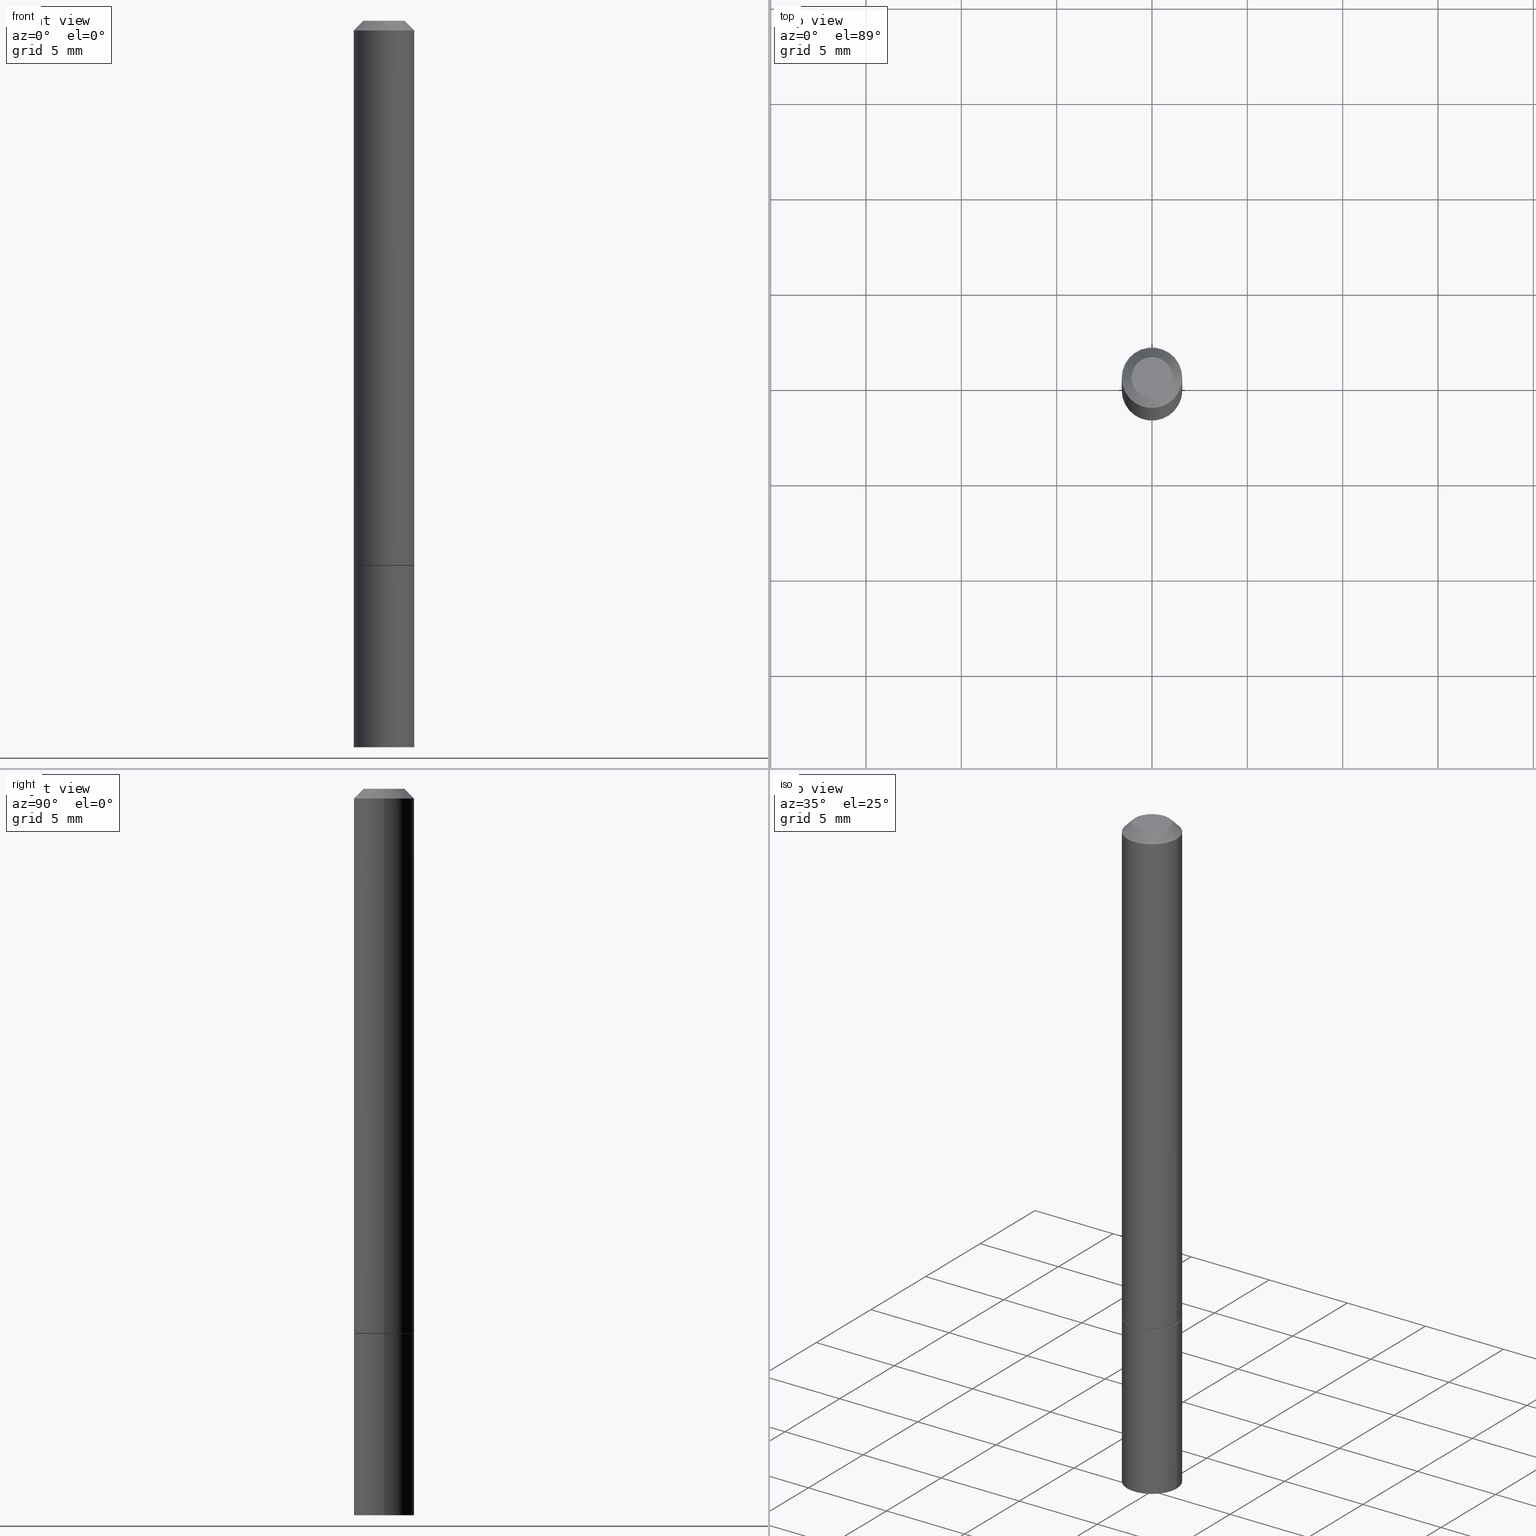
[diagram: canonical four-view strip — front | top / right | iso, engineering-drawing reading convention]
A machine part, canonical four-view strip (front | top / right | iso — engineering-drawing reading convention). The complete STEP part file that produces these views, byte-faithful:
ISO-10303-21;
HEADER;
FILE_DESCRIPTION (( 'STEP AP203' ),
    '1' );
FILE_NAME ('30469.STEP',
    '2024-02-27T12:43:29',
    ( '' ),
    ( '' ),
    'SwSTEP 2.0',
    'SolidWorks 2023',
    '' );
FILE_SCHEMA (( 'CONFIG_CONTROL_DESIGN' ));
ENDSEC;

DATA;
#1 = AXIS2_PLACEMENT_3D ( 'NONE', #119, #292, #152 ) ;
#2 = ADVANCED_FACE ( 'NONE', ( #312 ), #80, .T. ) ;
#3 = ORIENTED_EDGE ( 'NONE', *, *, #122, .T. ) ;
#4 = PERSON_AND_ORGANIZATION ( #288, #198 ) ;
#5 = EDGE_LOOP ( 'NONE', ( #194, #30 ) ) ;
#6 = DIRECTION ( 'NONE',  ( 2.438088387897960049E-29, -3.491481338843145188E-15, -1.000000000000000000 ) ) ;
#7 = EDGE_CURVE ( 'NONE', #219, #131, #111, .T. ) ;
#8 = AXIS2_PLACEMENT_3D ( 'NONE', #190, #306, #49 ) ;
#9 = DIRECTION ( 'NONE',  ( -2.445468806185136597E-29, 3.491481338843145583E-15, 1.000000000000000000 ) ) ;
#10 = AXIS2_PLACEMENT_3D ( 'NONE', #187, #158, #134 ) ;
#11 = LOCAL_TIME ( 7, 43, 29.00000000000000000, #210 ) ;
#12 = FACE_OUTER_BOUND ( 'NONE', #76, .T. ) ;
#13 = MANIFOLD_SOLID_BREP ( 'Body-Move/Copy2[1]', #104 ) ;
#14 = DIRECTION ( 'NONE',  ( 1.000000000000000000, -6.982962677686269077E-15, 0.000000000000000000 ) ) ;
#15 = DIRECTION ( 'NONE',  ( 1.000000000000000000, 0.000000000000000000, 0.000000000000000000 ) ) ;
#16 = DIRECTION ( 'NONE',  ( -2.445468806185136597E-29, 3.491481338843145583E-15, 1.000000000000000000 ) ) ;
#17 = DIRECTION ( 'NONE',  ( -1.000000000000000000, 6.982962677686266711E-15, 0.000000000000000000 ) ) ;
#18 = DIRECTION ( 'NONE',  ( 1.000000000000000000, -6.982962677686269077E-15, 0.000000000000000000 ) ) ;
#19 = EDGE_CURVE ( 'NONE', #325, #245, #360, .T. ) ;
#20 = CC_DESIGN_DATE_AND_TIME_ASSIGNMENT ( #109, #304, ( #211 ) ) ;
#21 = ORIENTED_EDGE ( 'NONE', *, *, #328, .T. ) ;
#22 = VECTOR ( 'NONE', #144, 39.37007874015748854 ) ;
#23 = EDGE_CURVE ( 'NONE', #131, #219, #356, .T. ) ;
#24 = EDGE_LOOP ( 'NONE', ( #82, #164 ) ) ;
#25 = CIRCLE ( 'NONE', #234, 0.06250000000000001388 ) ;
#26 = ORIENTED_EDGE ( 'NONE', *, *, #359, .F. ) ;
#27 = ORIENTED_EDGE ( 'NONE', *, *, #7, .T. ) ;
#28 = ORIENTED_EDGE ( 'NONE', *, *, #107, .T. ) ;
#29 = LOCAL_TIME ( 7, 43, 29.00000000000000000, #361 ) ;
#30 = ORIENTED_EDGE ( 'NONE', *, *, #189, .T. ) ;
#31 = COORDINATED_UNIVERSAL_TIME_OFFSET ( 5, 0, .BEHIND. ) ;
#32 = DIRECTION ( 'NONE',  ( 2.438088387897960049E-29, -3.491481338843145188E-15, -1.000000000000000000 ) ) ;
#33 = CYLINDRICAL_SURFACE ( 'NONE', #218, 0.06250000000000001388 ) ;
#34 = CARTESIAN_POINT ( 'NONE',  ( -0.06150000000000001299, -3.490932723706076827E-15, -1.124999999999999778 ) ) ;
#35 = AXIS2_PLACEMENT_3D ( 'NONE', #138, #215, #310 ) ;
#36 = LINE ( 'NONE', #176, #358 ) ;
#37 = CARTESIAN_POINT ( 'NONE',  ( 0.06250000000000001388, -4.360860192215086309E-15, -1.123999999999999888 ) ) ;
#38 = PLANE ( 'NONE',  #350 ) ;
#39 = CARTESIAN_POINT ( 'NONE',  ( 0.000000000000000000, 0.000000000000000000, 0.000000000000000000 ) ) ;
#40 = PERSON_AND_ORGANIZATION ( #288, #198 ) ;
#41 = DIRECTION ( 'NONE',  ( -2.445468806185136597E-29, 3.491481338843145583E-15, 1.000000000000000000 ) ) ;
#42 = APPROVAL_PERSON_ORGANIZATION ( #297, #268, #182 ) ;
#43 = EDGE_LOOP ( 'NONE', ( #275, #357, #3, #337 ) ) ;
#44 = AXIS2_PLACEMENT_3D ( 'NONE', #202, #67, #17 ) ;
#45 = PERSON_AND_ORGANIZATION_ROLE ( 'creator' ) ;
#46 = ADVANCED_FACE ( 'NONE', ( #333 ), #78, .F. ) ;
#47 = EDGE_LOOP ( 'NONE', ( #106, #113, #73, #102 ) ) ;
#48 = DESIGN_CONTEXT ( 'detailed design', #74, 'design' ) ;
#49 = DIRECTION ( 'NONE',  ( -1.000000000000000000, 6.982962677686265922E-15, -4.876176775795935793E-29 ) ) ;
#50 = AXIS2_PLACEMENT_3D ( 'NONE', #192, #214, #331 ) ;
#51 = AXIS2_PLACEMENT_3D ( 'NONE', #118, #114, #123 ) ;
#52 = CIRCLE ( 'NONE', #289, 0.06250000000000001388 ) ;
#53 = ORIENTED_EDGE ( 'NONE', *, *, #107, .F. ) ;
#54 = APPROVAL ( #339, 'UNSPECIFIED' ) ;
#55 = ORIENTED_EDGE ( 'NONE', *, *, #353, .F. ) ;
#56 = CARTESIAN_POINT ( 'NONE',  ( 0.000000000000000000, 0.000000000000000000, 0.000000000000000000 ) ) ;
#57 = COORDINATED_UNIVERSAL_TIME_OFFSET ( 5, 0, .BEHIND. ) ;
#58 = CIRCLE ( 'NONE', #95, 0.06250000000000001388 ) ;
#59 = CYLINDRICAL_SURFACE ( 'NONE', #301, 0.06249999999999995143 ) ;
#60 = DIRECTION ( 'NONE',  ( -1.000000000000000000, 6.982962677686266711E-15, 0.000000000000000000 ) ) ;
#61 = FACE_OUTER_BOUND ( 'NONE', #196, .T. ) ;
#62 = DIRECTION ( 'NONE',  ( 1.000000000000000000, -6.982962677686267499E-15, 4.876176775795935793E-29 ) ) ;
#63 = VECTOR ( 'NONE', #348, 39.37007874015748854 ) ;
#64 = LINE ( 'NONE', #314, #135 ) ;
#65 = ADVANCED_FACE ( 'NONE', ( #277 ), #248, .T. ) ;
#66 = DIRECTION ( 'NONE',  ( -2.445468806185136597E-29, 3.491481338843145583E-15, 1.000000000000000000 ) ) ;
#67 = DIRECTION ( 'NONE',  ( 2.445468806185136597E-29, -3.491481338843145583E-15, -1.000000000000000000 ) ) ;
#68 = ORIENTED_EDGE ( 'NONE', *, *, #103, .T. ) ;
#69 = EDGE_CURVE ( 'NONE', #303, #181, #81, .T. ) ;
#70 = ORIENTED_EDGE ( 'NONE', *, *, #19, .T. ) ;
#71 = ORIENTED_EDGE ( 'NONE', *, *, #117, .T. ) ;
#72 = ADVANCED_BREP_SHAPE_REPRESENTATION ( '30469', ( #13, #252, #270 ), #226 ) ;
#73 = ORIENTED_EDGE ( 'NONE', *, *, #19, .F. ) ;
#74 = APPLICATION_CONTEXT ( 'configuration controlled 3d designs of mechanical parts and assemblies' ) ;
#75 = APPROVAL_DATE_TIME ( #243, #268 ) ;
#76 = EDGE_LOOP ( 'NONE', ( #272, #27, #21, #251 ) ) ;
#77 = DATE_AND_TIME ( #334, #11 ) ;
#78 = PLANE ( 'NONE',  #8 ) ;
#79 = CC_DESIGN_PERSON_AND_ORGANIZATION_ASSIGNMENT ( #115, #221, ( #211 ) ) ;
#80 = CYLINDRICAL_SURFACE ( 'NONE', #307, 0.06249999999999995143 ) ;
#81 = CIRCLE ( 'NONE', #233, 0.06250000000000001388 ) ;
#82 = ORIENTED_EDGE ( 'NONE', *, *, #359, .T. ) ;
#83 = ORIENTED_EDGE ( 'NONE', *, *, #294, .F. ) ;
#84 = APPROVAL_DATE_TIME ( #365, #54 ) ;
#85 = DIRECTION ( 'NONE',  ( 1.000000000000000000, -6.982962677686261189E-15, 0.000000000000000000 ) ) ;
#86 = DIMENSIONAL_EXPONENTS ( 1.000000000000000000, 0.000000000000000000, 0.000000000000000000, 0.000000000000000000, 0.000000000000000000, 0.000000000000000000, 0.000000000000000000 ) ;
#87 = DIRECTION ( 'NONE',  ( -2.445468806185136597E-29, 3.491481338843145583E-15, 1.000000000000000000 ) ) ;
#88 = APPROVAL_PERSON_ORGANIZATION ( #129, #171, #355 ) ;
#89 = CARTESIAN_POINT ( 'NONE',  ( 4.890937612370294178E-31, -6.982962677686321191E-17, -0.02000000000000008715 ) ) ;
#90 = DIRECTION ( 'NONE',  ( 1.000000000000000000, -6.982962677686269077E-15, 0.000000000000000000 ) ) ;
#91 = DIRECTION ( 'NONE',  ( -2.445468806185136597E-29, 3.491481338843145583E-15, 1.000000000000000000 ) ) ;
#92 = PLANE ( 'NONE',  #341 ) ;
#93 = AXIS2_PLACEMENT_3D ( 'NONE', #229, #204, #85 ) ;
#94 = DIRECTION ( 'NONE',  ( -2.445468806185136597E-29, 3.491481338843145583E-15, 1.000000000000000000 ) ) ;
#95 = AXIS2_PLACEMENT_3D ( 'NONE', #127, #208, #18 ) ;
#96 = FACE_OUTER_BOUND ( 'NONE', #177, .T. ) ;
#97 = DIRECTION ( 'NONE',  ( 1.000000000000000000, -6.982962677686267499E-15, 4.876176775795935793E-29 ) ) ;
#98 = CC_DESIGN_PERSON_AND_ORGANIZATION_ASSIGNMENT ( #40, #186, ( #178 ) ) ;
#99 =( NAMED_UNIT ( * ) PLANE_ANGLE_UNIT ( ) SI_UNIT ( $, .RADIAN. ) );
#100 = ORIENTED_EDGE ( 'NONE', *, *, #200, .F. ) ;
#101 = LOCAL_TIME ( 7, 43, 29.00000000000000000, #57 ) ;
#102 = ORIENTED_EDGE ( 'NONE', *, *, #122, .F. ) ;
#103 = EDGE_CURVE ( 'NONE', #245, #325, #217, .T. ) ;
#104 = CLOSED_SHELL ( 'NONE', ( #318, #65, #223, #261 ) ) ;
#105 = AXIS2_PLACEMENT_3D ( 'NONE', #344, #9, #173 ) ;
#106 = ORIENTED_EDGE ( 'NONE', *, *, #136, .T. ) ;
#107 = EDGE_CURVE ( 'NONE', #308, #366, #249, .T. ) ;
#108 = EDGE_LOOP ( 'NONE', ( #282, #55, #364, #68 ) ) ;
#109 = DATE_AND_TIME ( #159, #101 ) ;
#110 = EDGE_LOOP ( 'NONE', ( #183, #238, #26, #298 ) ) ;
#111 = CIRCLE ( 'NONE', #50, 0.06150000000000001299 ) ;
#112 = CONICAL_SURFACE ( 'NONE', #327, 0.06150000000000001299, 0.7853981633974141952 ) ;
#113 = ORIENTED_EDGE ( 'NONE', *, *, #343, .T. ) ;
#114 = DIRECTION ( 'NONE',  ( -2.445468806185136597E-29, 3.491481338843145583E-15, 1.000000000000000000 ) ) ;
#115 = PERSON_AND_ORGANIZATION ( #288, #198 ) ;
#116 = CARTESIAN_POINT ( 'NONE',  ( -0.06249999999999988204, 3.666055405785276317E-16, -0.02000000000000008715 ) ) ;
#117 = EDGE_CURVE ( 'NONE', #137, #325, #254, .T. ) ;
#118 = CARTESIAN_POINT ( 'NONE',  ( 2.751152406958278111E-29, -3.927916506198538435E-15, -1.124999999999999778 ) ) ;
#119 = CARTESIAN_POINT ( 'NONE',  ( 1.357006838635785746E-45, -1.937446121494581442E-31, -5.549066237130534971E-17 ) ) ;
#120 = CARTESIAN_POINT ( 'NONE',  ( 2.751152406958278111E-29, -3.927916506198538435E-15, -1.124999999999999778 ) ) ;
#121 = CARTESIAN_POINT ( 'NONE',  ( 0.04249999999999988509, -3.950909582714363501E-16, -5.549066237130292766E-17 ) ) ;
#122 = EDGE_CURVE ( 'NONE', #181, #325, #342, .T. ) ;
#123 = DIRECTION ( 'NONE',  ( 1.000000000000000000, -6.982962677686268288E-15, 0.000000000000000000 ) ) ;
#124 = FACE_OUTER_BOUND ( 'NONE', #24, .T. ) ;
#125 = FACE_OUTER_BOUND ( 'NONE', #108, .T. ) ;
#126 = DIRECTION ( 'NONE',  ( 1.000000000000000000, -6.982962677686266711E-15, 0.000000000000000000 ) ) ;
#127 = CARTESIAN_POINT ( 'NONE',  ( 2.751152406958278111E-29, -3.927916506198538435E-15, -1.124999999999999778 ) ) ;
#128 = CARTESIAN_POINT ( 'NONE',  ( 0.06249999999999988204, -4.986107516375831334E-16, -0.02000000000000008715 ) ) ;
#129 = PERSON_AND_ORGANIZATION ( #288, #198 ) ;
#130 = AXIS2_PLACEMENT_3D ( 'NONE', #235, #352, #97 ) ;
#131 = VERTEX_POINT ( 'NONE', #283 ) ;
#132 = EDGE_CURVE ( 'NONE', #308, #242, #64, .T. ) ;
#133 = COORDINATED_UNIVERSAL_TIME_OFFSET ( 5, 0, .BEHIND. ) ;
#134 = DIRECTION ( 'NONE',  ( 1.000000000000000000, -6.982962677686266711E-15, 0.000000000000000000 ) ) ;
#135 = VECTOR ( 'NONE', #197, 39.37007874015748143 ) ;
#136 = EDGE_CURVE ( 'NONE', #181, #303, #52, .T. ) ;
#137 = VERTEX_POINT ( 'NONE', #121 ) ;
#138 = CARTESIAN_POINT ( 'NONE',  ( 2.751152406958278111E-29, -3.927916506198538435E-15, -1.124999999999999778 ) ) ;
#139 = ORIENTED_EDGE ( 'NONE', *, *, #145, .T. ) ;
#140 = CIRCLE ( 'NONE', #240, 0.06250000000000001388 ) ;
#141 = ORIENTED_EDGE ( 'NONE', *, *, #7, .F. ) ;
#142 = CARTESIAN_POINT ( 'NONE',  ( 2.748706938152093068E-29, -3.924425024859694639E-15, -1.123999999999999888 ) ) ;
#143 = FACE_OUTER_BOUND ( 'NONE', #362, .T. ) ;
#144 = DIRECTION ( 'NONE',  ( -0.7071067811865232589, 7.493145998870265808E-15, 0.7071067811865715536 ) ) ;
#145 = EDGE_CURVE ( 'NONE', #366, #161, #172, .T. ) ;
#146 = VECTOR ( 'NONE', #222, 39.37007874015748143 ) ;
#147 = FACE_OUTER_BOUND ( 'NONE', #110, .T. ) ;
#148 = CYLINDRICAL_SURFACE ( 'NONE', #130, 0.06250000000000001388 ) ;
#149 =( NAMED_UNIT ( * ) SI_UNIT ( $, .STERADIAN. ) SOLID_ANGLE_UNIT ( ) );
#150 = DIRECTION ( 'NONE',  ( 1.000000000000000000, -6.982962677686269077E-15, 0.000000000000000000 ) ) ;
#151 = DIRECTION ( 'NONE',  ( -2.445468806185136597E-29, 3.491481338843145583E-15, 1.000000000000000000 ) ) ;
#152 = DIRECTION ( 'NONE',  ( 1.000000000000000000, -6.982962677686267499E-15, 4.870577812114097619E-29 ) ) ;
#153 =( CONVERSION_BASED_UNIT ( 'INCH', #320 ) LENGTH_UNIT ( ) NAMED_UNIT ( #86 ) );
#154 = LOCAL_TIME ( 7, 43, 29.00000000000000000, #31 ) ;
#155 = ORIENTED_EDGE ( 'NONE', *, *, #232, .T. ) ;
#156 = CALENDAR_DATE ( 2024, 27, 2 ) ;
#157 = ADVANCED_FACE ( 'NONE', ( #96 ), #274, .T. ) ;
#158 = DIRECTION ( 'NONE',  ( -2.445468806185136597E-29, 3.491481338843145583E-15, 1.000000000000000000 ) ) ;
#159 = CALENDAR_DATE ( 2024, 27, 2 ) ;
#160 = CLOSED_SHELL ( 'NONE', ( #300, #165, #157, #332, #2, #256, #326, #46 ) ) ;
#161 = VERTEX_POINT ( 'NONE', #201 ) ;
#162 = CONICAL_SURFACE ( 'NONE', #51, 0.06150000000000001299, 0.7853981633974141952 ) ;
#163 = ORIENTED_EDGE ( 'NONE', *, *, #271, .F. ) ;
#164 = ORIENTED_EDGE ( 'NONE', *, *, #271, .T. ) ;
#165 = ADVANCED_FACE ( 'NONE', ( #174 ), #59, .T. ) ;
#166 = DIRECTION ( 'NONE',  ( -2.445468806185136597E-29, 3.491481338843145583E-15, 1.000000000000000000 ) ) ;
#167 = CIRCLE ( 'NONE', #1, 0.04249999999999988509 ) ;
#168 = APPROVAL_PERSON_ORGANIZATION ( #309, #54, #278 ) ;
#169 = LINE ( 'NONE', #116, #146 ) ;
#170 = DIRECTION ( 'NONE',  ( 0.7071067811865469066, -7.319954787623254468E-15, -0.7071067811865482389 ) ) ;
#171 = APPROVAL ( #237, 'UNSPECIFIED' ) ;
#172 = LINE ( 'NONE', #231, #205 ) ;
#173 = DIRECTION ( 'NONE',  ( 1.000000000000000000, -6.982962677686267499E-15, 4.870577812114097619E-29 ) ) ;
#174 = FACE_OUTER_BOUND ( 'NONE', #47, .T. ) ;
#175 = DIRECTION ( 'NONE',  ( 1.000000000000000000, -6.982962677686266711E-15, 4.876176775795935793E-29 ) ) ;
#176 = CARTESIAN_POINT ( 'NONE',  ( -0.06249999999999995143, 4.440892098500622710E-16, -3.074334431409313661E-30 ) ) ;
#177 = EDGE_LOOP ( 'NONE', ( #335, #71, #70, #100 ) ) ;
#178 = PRODUCT ( '30469', '30469', '', ( #230 ) ) ;
#179 = ORIENTED_EDGE ( 'NONE', *, *, #136, .F. ) ;
#180 = PRODUCT_RELATED_PRODUCT_CATEGORY ( 'detail', '', ( #178 ) ) ;
#181 = VERTEX_POINT ( 'NONE', #37 ) ;
#182 = APPROVAL_ROLE ( '' ) ;
#183 = ORIENTED_EDGE ( 'NONE', *, *, #294, .T. ) ;
#184 = APPLICATION_PROTOCOL_DEFINITION ( 'international standard', 'config_control_design', 1994, #74 ) ;
#185 = AXIS2_PLACEMENT_3D ( 'NONE', #323, #206, #60 ) ;
#186 = PERSON_AND_ORGANIZATION_ROLE ( 'design_owner' ) ;
#187 = CARTESIAN_POINT ( 'NONE',  ( 4.890937612370294178E-31, -6.982962677686321191E-17, -0.02000000000000008715 ) ) ;
#188 = SECURITY_CLASSIFICATION_LEVEL ( 'unclassified' ) ;
#189 = EDGE_CURVE ( 'NONE', #137, #216, #167, .T. ) ;
#190 = CARTESIAN_POINT ( 'NONE',  ( 2.967759138016655168E-16, 0.04249999999999988509, -1.761332880864859756E-16 ) ) ;
#191 = CIRCLE ( 'NONE', #105, 0.04249999999999988509 ) ;
#192 = CARTESIAN_POINT ( 'NONE',  ( 2.751152406958278111E-29, -3.927916506198538435E-15, -1.124999999999999778 ) ) ;
#193 = CC_DESIGN_SECURITY_CLASSIFICATION ( #211, ( #329 ) ) ;
#194 = ORIENTED_EDGE ( 'NONE', *, *, #353, .T. ) ;
#195 = PERSON_AND_ORGANIZATION_ROLE ( 'design_supplier' ) ;
#196 = EDGE_LOOP ( 'NONE', ( #338, #28, #139, #163 ) ) ;
#197 = DIRECTION ( 'NONE',  ( -2.445468806185136877E-29, 3.491481338843145188E-15, 1.000000000000000000 ) ) ;
#198 = ORGANIZATION ( 'UNSPECIFIED', 'UNSPECIFIED', '' ) ;
#199 = FACE_OUTER_BOUND ( 'NONE', #246, .T. ) ;
#200 = EDGE_CURVE ( 'NONE', #216, #245, #169, .T. ) ;
#201 = CARTESIAN_POINT ( 'NONE',  ( 0.06250000000000001388, -4.364351673553930105E-15, -1.124999999999999778 ) ) ;
#202 = CARTESIAN_POINT ( 'NONE',  ( 4.890937612370294178E-31, -6.982962677686321191E-17, -0.02000000000000008715 ) ) ;
#203 = CARTESIAN_POINT ( 'NONE',  ( -0.06250000000000001388, -4.138480047381564901E-15, -1.124999999999999778 ) ) ;
#204 = DIRECTION ( 'NONE',  ( -2.445468806185136597E-29, 3.491481338843145583E-15, 1.000000000000000000 ) ) ;
#205 = VECTOR ( 'NONE', #349, 39.37007874015748143 ) ;
#206 = DIRECTION ( 'NONE',  ( 2.445468806185136597E-29, -3.491481338843145583E-15, -1.000000000000000000 ) ) ;
#207 = CARTESIAN_POINT ( 'NONE',  ( 0.06150000000000001299, -4.357368710876244090E-15, -1.124999999999999778 ) ) ;
#208 = DIRECTION ( 'NONE',  ( -2.445468806185136597E-29, 3.491481338843145583E-15, 1.000000000000000000 ) ) ;
#209 = DATE_AND_TIME ( #156, #29 ) ;
#210 = COORDINATED_UNIVERSAL_TIME_OFFSET ( 5, 0, .BEHIND. ) ;
#211 = SECURITY_CLASSIFICATION ( '', '', #188 ) ;
#212 = CC_DESIGN_PERSON_AND_ORGANIZATION_ASSIGNMENT ( #4, #195, ( #329 ) ) ;
#213 = EDGE_LOOP ( 'NONE', ( #83, #53 ) ) ;
#214 = DIRECTION ( 'NONE',  ( -2.445468806185136597E-29, 3.491481338843145583E-15, 1.000000000000000000 ) ) ;
#215 = DIRECTION ( 'NONE',  ( -2.445468806185136597E-29, 3.491481338843145583E-15, 1.000000000000000000 ) ) ;
#216 = VERTEX_POINT ( 'NONE', #228 ) ;
#217 = CIRCLE ( 'NONE', #269, 0.06249999999999988204 ) ;
#218 = AXIS2_PLACEMENT_3D ( 'NONE', #267, #151, #62 ) ;
#219 = VERTEX_POINT ( 'NONE', #347 ) ;
#220 = ORIENTED_EDGE ( 'NONE', *, *, #23, .T. ) ;
#221 = PERSON_AND_ORGANIZATION_ROLE ( 'classification_officer' ) ;
#222 = DIRECTION ( 'NONE',  ( -0.7071067811865469066, 2.468850131082249961E-15, -0.7071067811865482389 ) ) ;
#223 = ADVANCED_FACE ( 'NONE', ( #124 ), #92, .F. ) ;
#224 = DIRECTION ( 'NONE',  ( 1.000000000000000000, -6.982962677686261189E-15, 0.000000000000000000 ) ) ;
#225 = DIRECTION ( 'NONE',  ( -2.445468806185136877E-29, 3.491481338843145188E-15, 1.000000000000000000 ) ) ;
#226 =( GEOMETRIC_REPRESENTATION_CONTEXT ( 3 ) GLOBAL_UNCERTAINTY_ASSIGNED_CONTEXT ( ( #319 ) ) GLOBAL_UNIT_ASSIGNED_CONTEXT ( ( #153, #99, #149 ) ) REPRESENTATION_CONTEXT ( 'NONE', 'WORKASPACE' ) );
#227 = DIRECTION ( 'NONE',  ( -2.445468806185136877E-29, 3.491481338843145188E-15, 1.000000000000000000 ) ) ;
#228 = CARTESIAN_POINT ( 'NONE',  ( -0.04249999999999988509, 3.316907271900965249E-16, -5.549066237130754373E-17 ) ) ;
#229 = CARTESIAN_POINT ( 'NONE',  ( 3.668203209277704335E-29, -5.237222008264717388E-15, -1.499999999999999778 ) ) ;
#230 = MECHANICAL_CONTEXT ( 'NONE', #255, 'mechanical' ) ;
#231 = CARTESIAN_POINT ( 'NONE',  ( 0.06250000000000001388, -4.364351673553918173E-16, 3.047610484872460571E-30 ) ) ;
#232 = EDGE_CURVE ( 'NONE', #219, #303, #285, .T. ) ;
#233 = AXIS2_PLACEMENT_3D ( 'NONE', #142, #263, #14 ) ;
#234 = AXIS2_PLACEMENT_3D ( 'NONE', #286, #87, #224 ) ;
#235 = CARTESIAN_POINT ( 'NONE',  ( 0.000000000000000000, 0.000000000000000000, 0.000000000000000000 ) ) ;
#236 = CC_DESIGN_PERSON_AND_ORGANIZATION_ASSIGNMENT ( #302, #45, ( #305 ) ) ;
#237 = APPROVAL_STATUS ( 'not_yet_approved' ) ;
#238 = ORIENTED_EDGE ( 'NONE', *, *, #132, .T. ) ;
#239 = AXIS2_PLACEMENT_3D ( 'NONE', #260, #6, #291 ) ;
#240 = AXIS2_PLACEMENT_3D ( 'NONE', #120, #94, #90 ) ;
#241 = CALENDAR_DATE ( 2024, 27, 2 ) ;
#242 = VERTEX_POINT ( 'NONE', #203 ) ;
#243 = DATE_AND_TIME ( #241, #244 ) ;
#244 = LOCAL_TIME ( 7, 43, 29.00000000000000000, #133 ) ;
#245 = VERTEX_POINT ( 'NONE', #258 ) ;
#246 = EDGE_LOOP ( 'NONE', ( #220, #155, #179, #299 ) ) ;
#247 = CC_DESIGN_DATE_AND_TIME_ASSIGNMENT ( #209, #296, ( #305 ) ) ;
#248 = PLANE ( 'NONE',  #239 ) ;
#249 = CIRCLE ( 'NONE', #93, 0.06250000000000001388 ) ;
#250 = VECTOR ( 'NONE', #170, 39.37007874015748143 ) ;
#251 = ORIENTED_EDGE ( 'NONE', *, *, #69, .F. ) ;
#252 = MANIFOLD_SOLID_BREP ( 'Body-Move/Copy2[2]', #160 ) ;
#253 = DIRECTION ( 'NONE',  ( 1.000000000000000000, -6.982962677686266711E-15, 4.876176775795935793E-29 ) ) ;
#254 = LINE ( 'NONE', #265, #250 ) ;
#255 = APPLICATION_CONTEXT ( 'configuration controlled 3d designs of mechanical parts and assemblies' ) ;
#256 = ADVANCED_FACE ( 'NONE', ( #12 ), #112, .T. ) ;
#257 = CARTESIAN_POINT ( 'NONE',  ( -0.06250000000000001388, -1.553038115968214380E-15, -1.123999999999999888 ) ) ;
#258 = CARTESIAN_POINT ( 'NONE',  ( -0.06249999999999988204, 3.666055405785276317E-16, -0.02000000000000008715 ) ) ;
#259 = CC_DESIGN_APPROVAL ( #268, ( #305 ) ) ;
#260 = CARTESIAN_POINT ( 'NONE',  ( 4.364351673554284500E-16, 0.06249999999999478195, -1.500000000000000222 ) ) ;
#261 = ADVANCED_FACE ( 'NONE', ( #61 ), #148, .T. ) ;
#262 = DIRECTION ( 'NONE',  ( 0.000000000000000000, 0.000000000000000000, 1.000000000000000000 ) ) ;
#263 = DIRECTION ( 'NONE',  ( -2.445468806185136597E-29, 3.491481338843145583E-15, 1.000000000000000000 ) ) ;
#264 = DIRECTION ( 'NONE',  ( -2.438088387897960049E-29, 3.491481338843145188E-15, 1.000000000000000000 ) ) ;
#265 = CARTESIAN_POINT ( 'NONE',  ( 0.06249999999999988204, -4.986107516375831334E-16, -0.02000000000000008715 ) ) ;
#266 = CONICAL_SURFACE ( 'NONE', #44, 0.06249999999999988204, 0.7853981633974473908 ) ;
#267 = CARTESIAN_POINT ( 'NONE',  ( 0.000000000000000000, 0.000000000000000000, 0.000000000000000000 ) ) ;
#268 = APPROVAL ( #330, 'UNSPECIFIED' ) ;
#269 = AXIS2_PLACEMENT_3D ( 'NONE', #89, #41, #126 ) ;
#270 = AXIS2_PLACEMENT_3D ( 'NONE', #290, #262, #15 ) ;
#271 = EDGE_CURVE ( 'NONE', #242, #161, #58, .T. ) ;
#272 = ORIENTED_EDGE ( 'NONE', *, *, #232, .F. ) ;
#273 = CALENDAR_DATE ( 2024, 27, 2 ) ;
#274 = CONICAL_SURFACE ( 'NONE', #185, 0.06249999999999988204, 0.7853981633974473908 ) ;
#275 = ORIENTED_EDGE ( 'NONE', *, *, #343, .F. ) ;
#276 = CC_DESIGN_PERSON_AND_ORGANIZATION_ASSIGNMENT ( #280, #363, ( #329 ) ) ;
#277 = FACE_OUTER_BOUND ( 'NONE', #213, .T. ) ;
#278 = APPROVAL_ROLE ( '' ) ;
#279 = ORIENTED_EDGE ( 'NONE', *, *, #23, .F. ) ;
#280 = PERSON_AND_ORGANIZATION ( #288, #198 ) ;
#281 = VECTOR ( 'NONE', #225, 39.37007874015748143 ) ;
#282 = ORIENTED_EDGE ( 'NONE', *, *, #117, .F. ) ;
#283 = CARTESIAN_POINT ( 'NONE',  ( 0.06150000000000001299, -4.357368710876244090E-15, -1.124999999999999778 ) ) ;
#284 = LINE ( 'NONE', #207, #63 ) ;
#285 = LINE ( 'NONE', #34, #22 ) ;
#286 = CARTESIAN_POINT ( 'NONE',  ( 3.668203209277704335E-29, -5.237222008264717388E-15, -1.499999999999999778 ) ) ;
#287 = CARTESIAN_POINT ( 'NONE',  ( 2.748706938152093068E-29, -3.924425024859694639E-15, -1.123999999999999888 ) ) ;
#288 = PERSON ( 'UNSPECIFIED', 'UNSPECIFIED', 'UNSPECIFIED', ('UNSPECIFIED'), ('UNSPECIFIED'), ('UNSPECIFIED') ) ;
#289 = AXIS2_PLACEMENT_3D ( 'NONE', #287, #16, #150 ) ;
#290 = CARTESIAN_POINT ( 'NONE',  ( 0.000000000000000000, 0.000000000000000000, 0.000000000000000000 ) ) ;
#291 = DIRECTION ( 'NONE',  ( -1.000000000000000000, 6.982962677686265922E-15, -4.876176775795935793E-29 ) ) ;
#292 = DIRECTION ( 'NONE',  ( -2.445468806185136597E-29, 3.491481338843145583E-15, 1.000000000000000000 ) ) ;
#293 =( LENGTH_UNIT ( ) NAMED_UNIT ( * ) SI_UNIT ( $, .METRE. ) );
#294 = EDGE_CURVE ( 'NONE', #366, #308, #25, .T. ) ;
#295 = CC_DESIGN_APPROVAL ( #171, ( #329 ) ) ;
#296 = DATE_TIME_ROLE ( 'creation_date' ) ;
#297 = PERSON_AND_ORGANIZATION ( #288, #198 ) ;
#298 = ORIENTED_EDGE ( 'NONE', *, *, #145, .F. ) ;
#299 = ORIENTED_EDGE ( 'NONE', *, *, #328, .F. ) ;
#300 = ADVANCED_FACE ( 'NONE', ( #199 ), #162, .T. ) ;
#301 = AXIS2_PLACEMENT_3D ( 'NONE', #39, #66, #175 ) ;
#302 = PERSON_AND_ORGANIZATION ( #288, #198 ) ;
#303 = VERTEX_POINT ( 'NONE', #257 ) ;
#304 = DATE_TIME_ROLE ( 'classification_date' ) ;
#305 = PRODUCT_DEFINITION ( 'UNKNOWN', '', #329, #48 ) ;
#306 = DIRECTION ( 'NONE',  ( 2.438088387897960049E-29, -3.491481338843145188E-15, -1.000000000000000000 ) ) ;
#307 = AXIS2_PLACEMENT_3D ( 'NONE', #56, #166, #253 ) ;
#308 = VERTEX_POINT ( 'NONE', #324 ) ;
#309 = PERSON_AND_ORGANIZATION ( #288, #198 ) ;
#310 = DIRECTION ( 'NONE',  ( 1.000000000000000000, -6.982962677686268288E-15, 0.000000000000000000 ) ) ;
#311 = SHAPE_DEFINITION_REPRESENTATION ( #354, #72 ) ;
#312 = FACE_OUTER_BOUND ( 'NONE', #43, .T. ) ;
#313 = APPROVAL_DATE_TIME ( #77, #171 ) ;
#314 = CARTESIAN_POINT ( 'NONE',  ( -0.06250000000000001388, 4.440892098500627148E-16, -3.074334431409317165E-30 ) ) ;
#315 = DIRECTION ( 'NONE',  ( -1.000000000000000000, 6.982962677686265922E-15, -4.876176775795935793E-29 ) ) ;
#316 = CARTESIAN_POINT ( 'NONE',  ( 0.06250000000000001388, -5.673657175620109057E-15, -1.499999999999999778 ) ) ;
#317 = DIRECTION ( 'NONE',  ( 1.000000000000000000, -6.982962677686268288E-15, 0.000000000000000000 ) ) ;
#318 = ADVANCED_FACE ( 'NONE', ( #147 ), #33, .T. ) ;
#319 = UNCERTAINTY_MEASURE_WITH_UNIT (LENGTH_MEASURE( 1.000000000000000082E-05 ), #153, 'distance_accuracy_value', 'NONE');
#320 = LENGTH_MEASURE_WITH_UNIT ( LENGTH_MEASURE( 0.02539999999999999897 ), #293 );
#321 = CARTESIAN_POINT ( 'NONE',  ( 0.06249999999999995143, -4.364351673553913243E-16, 3.047610484872457418E-30 ) ) ;
#322 = CARTESIAN_POINT ( 'NONE',  ( 2.751152406958278111E-29, -3.927916506198538435E-15, -1.124999999999999778 ) ) ;
#323 = CARTESIAN_POINT ( 'NONE',  ( 4.890937612370294178E-31, -6.982962677686321191E-17, -0.02000000000000008715 ) ) ;
#324 = CARTESIAN_POINT ( 'NONE',  ( -0.06250000000000001388, -4.138480047381564901E-15, -1.499999999999999778 ) ) ;
#325 = VERTEX_POINT ( 'NONE', #128 ) ;
#326 = ADVANCED_FACE ( 'NONE', ( #143 ), #38, .F. ) ;
#327 = AXIS2_PLACEMENT_3D ( 'NONE', #345, #91, #317 ) ;
#328 = EDGE_CURVE ( 'NONE', #131, #181, #284, .T. ) ;
#329 = PRODUCT_DEFINITION_FORMATION_WITH_SPECIFIED_SOURCE ( 'ANY', '', #178, .NOT_KNOWN. ) ;
#330 = APPROVAL_STATUS ( 'not_yet_approved' ) ;
#331 = DIRECTION ( 'NONE',  ( 1.000000000000000000, -6.982962677686268288E-15, 0.000000000000000000 ) ) ;
#332 = ADVANCED_FACE ( 'NONE', ( #125 ), #266, .T. ) ;
#333 = FACE_OUTER_BOUND ( 'NONE', #5, .T. ) ;
#334 = CALENDAR_DATE ( 2024, 27, 2 ) ;
#335 = ORIENTED_EDGE ( 'NONE', *, *, #189, .F. ) ;
#336 = CC_DESIGN_APPROVAL ( #54, ( #211 ) ) ;
#337 = ORIENTED_EDGE ( 'NONE', *, *, #103, .F. ) ;
#338 = ORIENTED_EDGE ( 'NONE', *, *, #132, .F. ) ;
#339 = APPROVAL_STATUS ( 'not_yet_approved' ) ;
#340 = CARTESIAN_POINT ( 'NONE',  ( 4.364351673554192795E-16, 0.06249999999999608646, -1.125000000000000222 ) ) ;
#341 = AXIS2_PLACEMENT_3D ( 'NONE', #340, #32, #315 ) ;
#342 = LINE ( 'NONE', #321, #281 ) ;
#343 = EDGE_CURVE ( 'NONE', #303, #245, #36, .T. ) ;
#344 = CARTESIAN_POINT ( 'NONE',  ( 1.357006838635785746E-45, -1.937446121494581442E-31, -5.549066237130534971E-17 ) ) ;
#345 = CARTESIAN_POINT ( 'NONE',  ( 2.751152406958278111E-29, -3.927916506198538435E-15, -1.124999999999999778 ) ) ;
#346 = APPLICATION_PROTOCOL_DEFINITION ( 'international standard', 'config_control_design', 1994, #255 ) ;
#347 = CARTESIAN_POINT ( 'NONE',  ( -0.06150000000000001299, -3.485634269357854820E-15, -1.124999999999999778 ) ) ;
#348 = DIRECTION ( 'NONE',  ( 0.7071067811865232589, -2.468850131082003836E-15, 0.7071067811865715536 ) ) ;
#349 = DIRECTION ( 'NONE',  ( -2.445468806185136877E-29, 3.491481338843145188E-15, 1.000000000000000000 ) ) ;
#350 = AXIS2_PLACEMENT_3D ( 'NONE', #322, #264, #351 ) ;
#351 = DIRECTION ( 'NONE',  ( 1.000000000000000000, -6.982962677686265922E-15, 4.876176775795935793E-29 ) ) ;
#352 = DIRECTION ( 'NONE',  ( -2.445468806185136597E-29, 3.491481338843145583E-15, 1.000000000000000000 ) ) ;
#353 = EDGE_CURVE ( 'NONE', #216, #137, #191, .T. ) ;
#354 = PRODUCT_DEFINITION_SHAPE ( 'NONE', 'NONE',  #305 ) ;
#355 = APPROVAL_ROLE ( '' ) ;
#356 = CIRCLE ( 'NONE', #35, 0.06150000000000001299 ) ;
#357 = ORIENTED_EDGE ( 'NONE', *, *, #69, .T. ) ;
#358 = VECTOR ( 'NONE', #227, 39.37007874015748143 ) ;
#359 = EDGE_CURVE ( 'NONE', #161, #242, #140, .T. ) ;
#360 = CIRCLE ( 'NONE', #10, 0.06249999999999988204 ) ;
#361 = COORDINATED_UNIVERSAL_TIME_OFFSET ( 5, 0, .BEHIND. ) ;
#362 = EDGE_LOOP ( 'NONE', ( #279, #141 ) ) ;
#363 = PERSON_AND_ORGANIZATION_ROLE ( 'creator' ) ;
#364 = ORIENTED_EDGE ( 'NONE', *, *, #200, .T. ) ;
#365 = DATE_AND_TIME ( #273, #154 ) ;
#366 = VERTEX_POINT ( 'NONE', #316 ) ;
ENDSEC;
END-ISO-10303-21;
